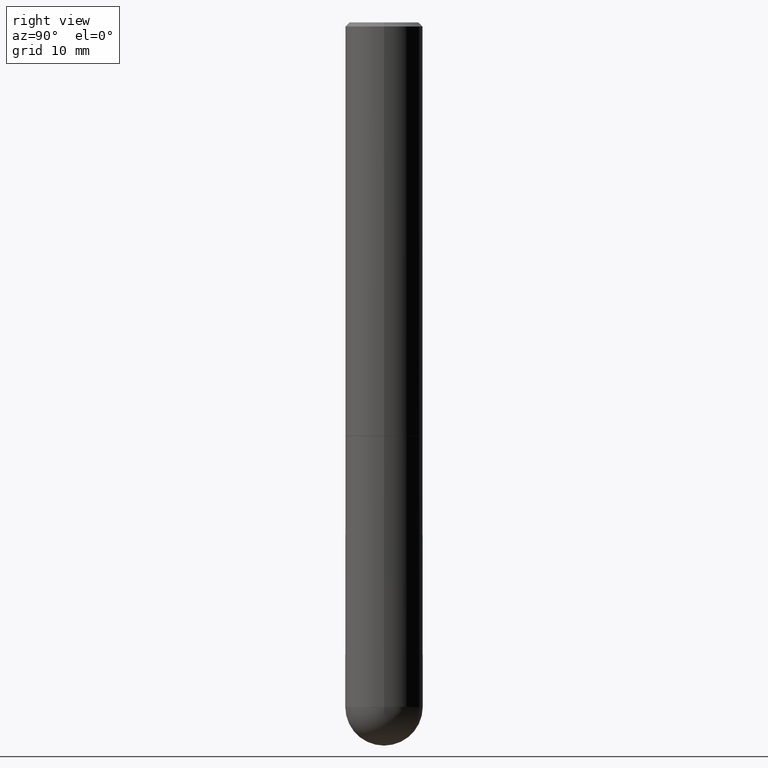
[diagram: clean part render]
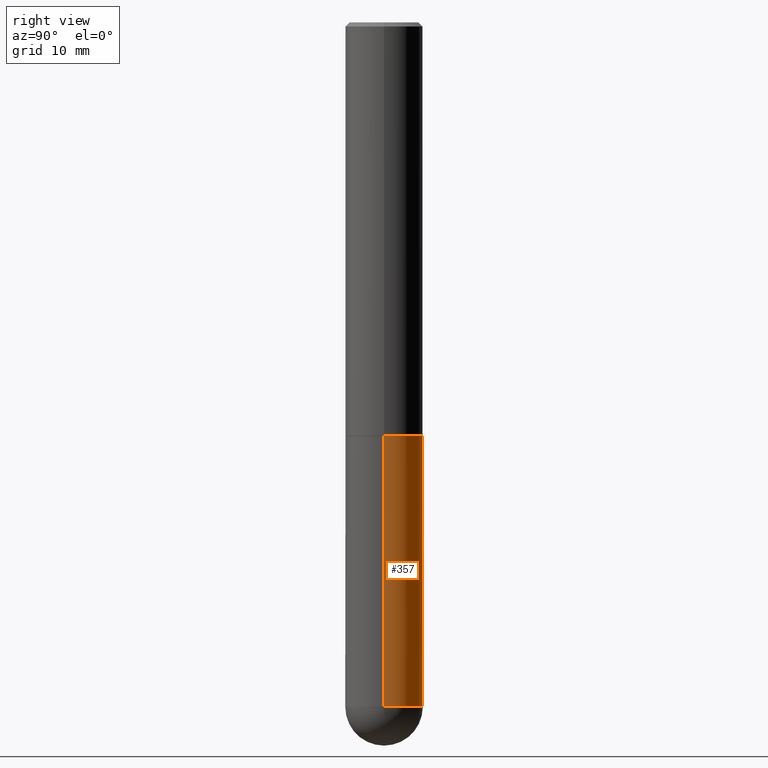
[diagram: same view with one face highlighted and labeled with its STEP entity id]
A machine part, right view. The second image highlights one B-rep face of the part: STEP entity #357.
In plain terms, the highlighted cylindrical surface (partial cylindrical patch) has radius 4.7625 mm, axis along (-0, 0, 1).
Its self-contained STEP definition (entity closure, byte-faithful):
#2 = ORIENTED_EDGE ( 'NONE', *, *, #153, .F. ) ;
#3 = CARTESIAN_POINT ( 'NONE',  ( 0.1875000000000000278, -8.292268179752465385E-15, -1.999999999999999778 ) ) ;
#6 = EDGE_CURVE ( 'NONE', #279, #151, #190, .T. ) ;
#7 = DIRECTION ( 'NONE',  ( -2.445468806185136597E-29, 3.491481338843145583E-15, 1.000000000000000000 ) ) ;
#15 = CARTESIAN_POINT ( 'NONE',  ( -0.1874999999999999722, 1.332267629550187651E-15, -9.223003294227946589E-30 ) ) ;
#36 = CARTESIAN_POINT ( 'NONE',  ( -0.1875000000000000278, -7.941979676751916286E-15, -1.999999999999999778 ) ) ;
#42 = CARTESIAN_POINT ( 'NONE',  ( 8.100615420488263856E-29, -1.156553193491791947E-14, -3.312499999999999556 ) ) ;
#47 = CIRCLE ( 'NONE', #282, 0.1874999999999999722 ) ;
#48 = CYLINDRICAL_SURFACE ( 'NONE', #293, 0.1874999999999999722 ) ;
#81 = CARTESIAN_POINT ( 'NONE',  ( 0.000000000000000000, 0.000000000000000000, 0.000000000000000000 ) ) ;
#86 = VERTEX_POINT ( 'NONE', #259 ) ;
#94 = CARTESIAN_POINT ( 'NONE',  ( 1.309305502066255275E-15, 0.1874999999999883149, -3.312500000000000444 ) ) ;
#96 = CARTESIAN_POINT ( 'NONE',  ( 4.890937612370272633E-29, -6.982962677686290376E-15, -1.999999999999999778 ) ) ;
#105 = CARTESIAN_POINT ( 'NONE',  ( 8.100615420488263856E-29, -1.156553193491791947E-14, -3.312499999999999556 ) ) ;
#107 = DIRECTION ( 'NONE',  ( 1.000000000000000000, -6.982962677686263555E-15, 0.000000000000000000 ) ) ;
#115 = ORIENTED_EDGE ( 'NONE', *, *, #378, .T. ) ;
#122 = AXIS2_PLACEMENT_3D ( 'NONE', #42, #7, #107 ) ;
#150 = DIRECTION ( 'NONE',  ( -2.445468806185136877E-29, 3.491481338843145188E-15, 1.000000000000000000 ) ) ;
#151 = VERTEX_POINT ( 'NONE', #36 ) ;
#152 = CIRCLE ( 'NONE', #122, 0.1874999999999999722 ) ;
#153 = EDGE_CURVE ( 'NONE', #86, #279, #327, .T. ) ;
#154 = VERTEX_POINT ( 'NONE', #94 ) ;
#163 = VERTEX_POINT ( 'NONE', #263 ) ;
#178 = VECTOR ( 'NONE', #294, 39.37007874015748143 ) ;
#185 = DIRECTION ( 'NONE',  ( -2.445468806185136597E-29, 3.491481338843145583E-15, 1.000000000000000000 ) ) ;
#190 = CIRCLE ( 'NONE', #253, 0.1875000000000000278 ) ;
#215 = DIRECTION ( 'NONE',  ( 1.000000000000000000, -6.982962677686263555E-15, 0.000000000000000000 ) ) ;
#220 = EDGE_CURVE ( 'NONE', #86, #154, #152, .T. ) ;
#232 = ORIENTED_EDGE ( 'NONE', *, *, #6, .F. ) ;
#235 = CARTESIAN_POINT ( 'NONE',  ( 0.1874999999999999722, -1.309305502066174811E-15, 9.142831454617378210E-30 ) ) ;
#252 = LINE ( 'NONE', #15, #369 ) ;
#253 = AXIS2_PLACEMENT_3D ( 'NONE', #96, #320, #353 ) ;
#259 = CARTESIAN_POINT ( 'NONE',  ( 0.1874999999999999722, -1.058355280836828072E-14, -3.312499999999999556 ) ) ;
#263 = CARTESIAN_POINT ( 'NONE',  ( -0.1874999999999999722, -7.941979676751917864E-15, -3.312499999999999556 ) ) ;
#277 = FACE_OUTER_BOUND ( 'NONE', #390, .T. ) ;
#279 = VERTEX_POINT ( 'NONE', #3 ) ;
#282 = AXIS2_PLACEMENT_3D ( 'NONE', #105, #360, #215 ) ;
#293 = AXIS2_PLACEMENT_3D ( 'NONE', #81, #185, #310 ) ;
#294 = DIRECTION ( 'NONE',  ( -2.445468806185136877E-29, 3.491481338843145188E-15, 1.000000000000000000 ) ) ;
#304 = ORIENTED_EDGE ( 'NONE', *, *, #342, .T. ) ;
#310 = DIRECTION ( 'NONE',  ( 1.000000000000000000, -6.982962677686266711E-15, 4.876176775795935793E-29 ) ) ;
#319 = ORIENTED_EDGE ( 'NONE', *, *, #220, .T. ) ;
#320 = DIRECTION ( 'NONE',  ( -2.445468806185136597E-29, 3.491481338843145583E-15, 1.000000000000000000 ) ) ;
#327 = LINE ( 'NONE', #235, #178 ) ;
#342 = EDGE_CURVE ( 'NONE', #154, #163, #47, .T. ) ;
#353 = DIRECTION ( 'NONE',  ( 1.000000000000000000, -6.982962677686266711E-15, 0.000000000000000000 ) ) ;
#357 = ADVANCED_FACE ( 'NONE', ( #277 ), #48, .T. ) ;
#360 = DIRECTION ( 'NONE',  ( -2.445468806185136597E-29, 3.491481338843145583E-15, 1.000000000000000000 ) ) ;
#369 = VECTOR ( 'NONE', #150, 39.37007874015748143 ) ;
#378 = EDGE_CURVE ( 'NONE', #163, #151, #252, .T. ) ;
#390 = EDGE_LOOP ( 'NONE', ( #304, #115, #232, #2, #319 ) ) ;